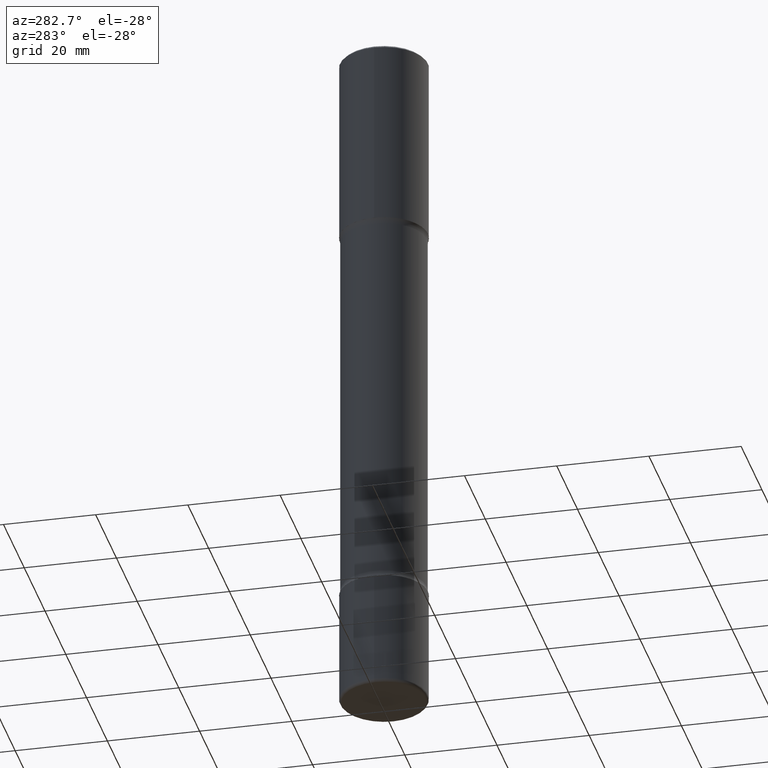
[diagram: clean part render]
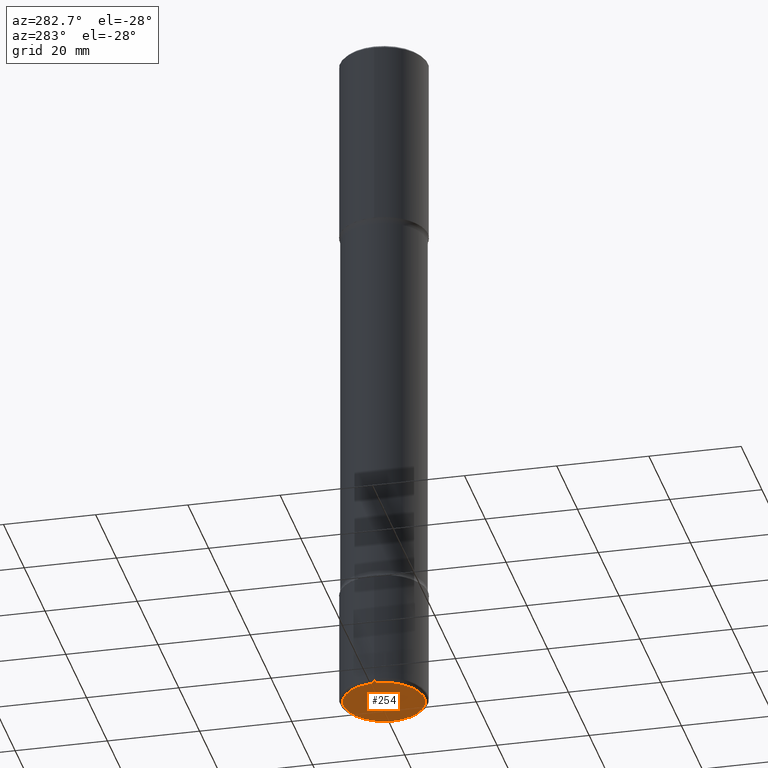
[diagram: same view with one face highlighted and labeled with its STEP entity id]
A machine part, auxiliary view. The second image highlights one B-rep face of the part: STEP entity #254.
In plain terms, the highlighted planar face has unit normal (0, -0, -1).
Its self-contained STEP definition (entity closure, byte-faithful):
#37 = VERTEX_POINT ( 'NONE', #363 ) ;
#58 = AXIS2_PLACEMENT_3D ( 'NONE', #553, #67, #295 ) ;
#65 = FACE_OUTER_BOUND ( 'NONE', #401, .T. ) ;
#67 = DIRECTION ( 'NONE',  ( -2.445468806185136597E-29, 3.491481338843145583E-15, 1.000000000000000000 ) ) ;
#98 = AXIS2_PLACEMENT_3D ( 'NONE', #154, #416, #459 ) ;
#109 = CIRCLE ( 'NONE', #58, 0.3450000000000003064 ) ;
#131 = CARTESIAN_POINT ( 'NONE',  ( 1.467281283711081958E-28, -2.094888803305887271E-14, -6.000000000000000888 ) ) ;
#154 = CARTESIAN_POINT ( 'NONE',  ( 1.467281283711081958E-28, -2.094888803305887271E-14, -6.000000000000000888 ) ) ;
#171 = EDGE_CURVE ( 'NONE', #316, #37, #109, .T. ) ;
#215 = CARTESIAN_POINT ( 'NONE',  ( -0.3450000000000003064, -1.833856196423986308E-14, -6.000000000000000888 ) ) ;
#253 = ORIENTED_EDGE ( 'NONE', *, *, #171, .F. ) ;
#254 = ADVANCED_FACE ( 'NONE', ( #65 ), #542, .T. ) ;
#295 = DIRECTION ( 'NONE',  ( 1.000000000000000000, -6.982962677686267499E-15, 0.000000000000000000 ) ) ;
#300 = DIRECTION ( 'NONE',  ( -2.445468806185136597E-29, 3.491481338843145583E-15, 1.000000000000000000 ) ) ;
#316 = VERTEX_POINT ( 'NONE', #215 ) ;
#330 = AXIS2_PLACEMENT_3D ( 'NONE', #131, #300, #340 ) ;
#340 = DIRECTION ( 'NONE',  ( 1.000000000000000000, -6.982962677686267499E-15, 0.000000000000000000 ) ) ;
#363 = CARTESIAN_POINT ( 'NONE',  ( 0.3450000000000003064, -2.335801015686063914E-14, -6.000000000000000888 ) ) ;
#389 = EDGE_CURVE ( 'NONE', #37, #316, #466, .T. ) ;
#401 = EDGE_LOOP ( 'NONE', ( #461, #253 ) ) ;
#416 = DIRECTION ( 'NONE',  ( 2.438088387897960049E-29, -3.491481338843145188E-15, -1.000000000000000000 ) ) ;
#459 = DIRECTION ( 'NONE',  ( -1.000000000000000000, 6.982962677686265922E-15, -4.876176775795935793E-29 ) ) ;
#461 = ORIENTED_EDGE ( 'NONE', *, *, #389, .F. ) ;
#466 = CIRCLE ( 'NONE', #330, 0.3450000000000003064 ) ;
#542 = PLANE ( 'NONE',  #98 ) ;
#553 = CARTESIAN_POINT ( 'NONE',  ( 1.467281283711081958E-28, -2.094888803305887271E-14, -6.000000000000000888 ) ) ;